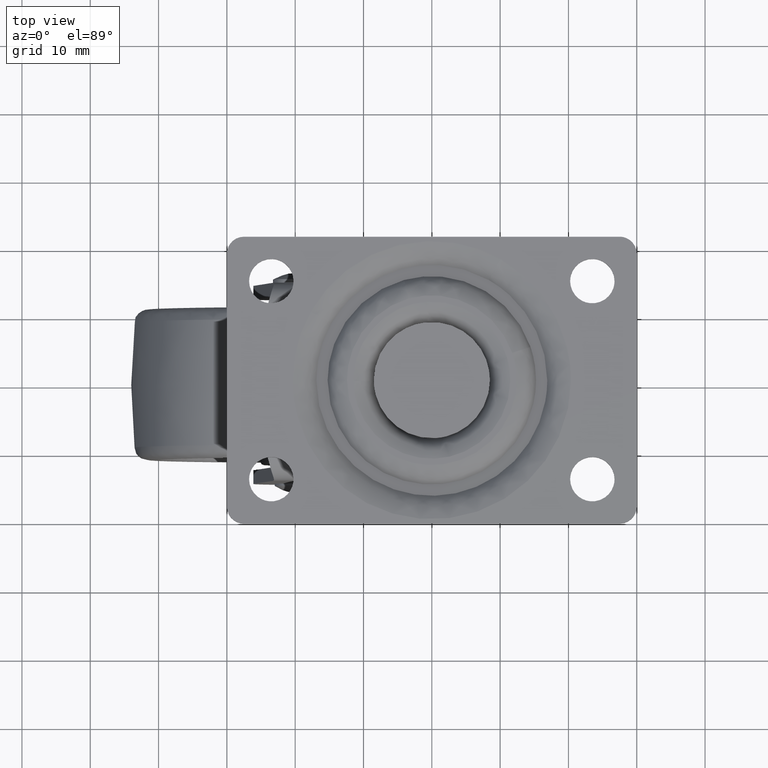
[diagram: clean part render]
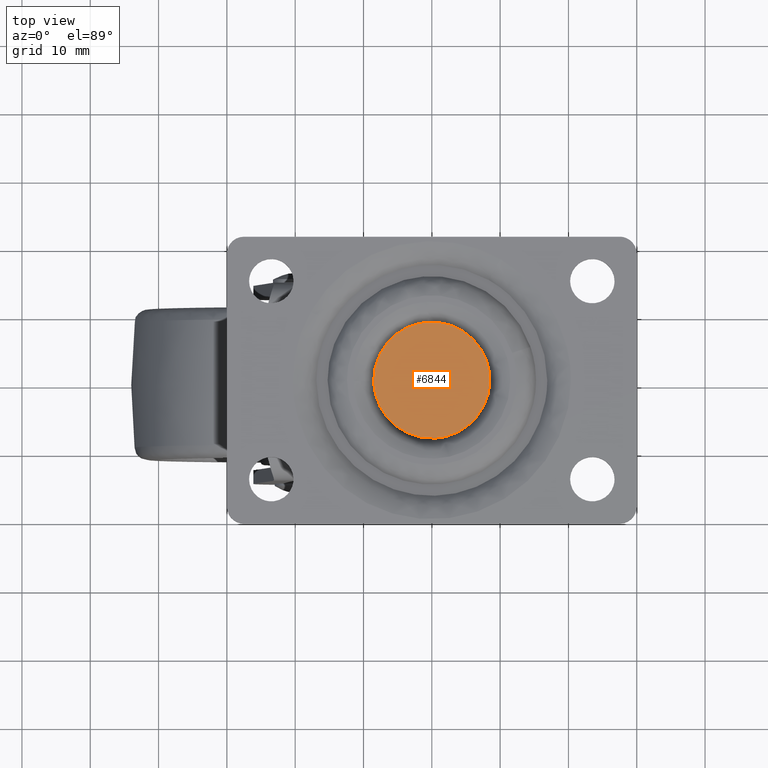
[diagram: same view with one face highlighted and labeled with its STEP entity id]
A machine part, top view. The second image highlights one B-rep face of the part: STEP entity #6844.
In plain terms, the highlighted face is a freeform B-spline surface patch.
Its self-contained STEP definition (entity closure, byte-faithful):
#5944=CARTESIAN_POINT('',(-1.003290168390213,8.440574023018852,3.549285E-016));
#5945=VERTEX_POINT('',#5944);
#5946=CARTESIAN_POINT('',(8.499993000000002,7.105427E-015,0.0));
#5947=VERTEX_POINT('',#5946);
#5948=CARTESIAN_POINT('',(-1.003290168390213,8.440574023018852,3.549285E-016));
#5949=CARTESIAN_POINT('',(-0.503404602520308,8.499993000000007,0.0));
#5950=CARTESIAN_POINT('',(0.0,8.499993000000007,0.0));
#5951=CARTESIAN_POINT('',(8.499993000000002,8.499993000000007,0.0));
#5952=CARTESIAN_POINT('',(8.499993000000002,7.105427E-015,0.0));
#5960=(BOUNDED_CURVE()B_SPLINE_CURVE(2,(#5948,#5949,#5950,#5951,#5952),.UNSPECIFIED.,.F.,.U.)B_SPLINE_CURVE_WITH_KNOTS((3,2,3),(0.229562473513746,0.250000000000000,0.500000000000000),.UNSPECIFIED.)CURVE()GEOMETRIC_REPRESENTATION_ITEM()RATIONAL_B_SPLINE_CURVE((0.956026754184165,0.976055948331423,1.0,0.707106781186547,1.0))REPRESENTATION_ITEM(''));
#5961=EDGE_CURVE('',#5945,#5947,#5960,.T.);
#5963=CARTESIAN_POINT('',(0.518912158783120,-8.484138799637588,3.330669E-016));
#5964=VERTEX_POINT('',#5963);
#5965=CARTESIAN_POINT('',(8.499993000000002,7.105427E-015,0.0));
#5966=CARTESIAN_POINT('',(8.499993000000002,-7.995994983611243,0.0));
#5967=CARTESIAN_POINT('',(0.518912158783120,-8.484138799637588,3.330669E-016));
#5975=(BOUNDED_CURVE()B_SPLINE_CURVE(2,(#5965,#5966,#5967),.UNSPECIFIED.,.F.,.U.)B_SPLINE_CURVE_WITH_KNOTS((3,3),(0.500000000000000,0.739332962238852),.UNSPECIFIED.)CURVE()GEOMETRIC_REPRESENTATION_ITEM()RATIONAL_B_SPLINE_CURVE((1.0,0.719603993286817,0.976072041666523))REPRESENTATION_ITEM(''));
#5976=EDGE_CURVE('',#5947,#5964,#5975,.T.);
#6043=CARTESIAN_POINT('',(-8.499993000000002,7.105427E-015,0.0));
#6044=VERTEX_POINT('',#6043);
#6045=CARTESIAN_POINT('',(-8.499993000000002,7.105427E-015,0.0));
#6046=CARTESIAN_POINT('',(-8.499993000000002,7.549477253279549,0.0));
#6047=CARTESIAN_POINT('',(-1.003290168390213,8.440574023018852,3.549285E-016));
#6055=(BOUNDED_CURVE()B_SPLINE_CURVE(2,(#6045,#6046,#6047),.UNSPECIFIED.,.F.,.U.)B_SPLINE_CURVE_WITH_KNOTS((3,3),(0.0,0.229562473513746),.UNSPECIFIED.)CURVE()GEOMETRIC_REPRESENTATION_ITEM()RATIONAL_B_SPLINE_CURVE((1.0,0.731050832855124,0.956026754184165))REPRESENTATION_ITEM(''));
#6056=EDGE_CURVE('',#6044,#5945,#6055,.T.);
#6090=CARTESIAN_POINT('',(0.518912158783120,-8.484138799637588,3.330669E-016));
#6091=CARTESIAN_POINT('',(0.259698274245491,-8.499992999999995,0.0));
#6092=CARTESIAN_POINT('',(0.0,-8.499992999999995,0.0));
#6093=CARTESIAN_POINT('',(-8.499993000000002,-8.499992999999995,0.0));
#6094=CARTESIAN_POINT('',(-8.499993000000002,7.105427E-015,0.0));
#6102=(BOUNDED_CURVE()B_SPLINE_CURVE(2,(#6090,#6091,#6092,#6093,#6094),.UNSPECIFIED.,.F.,.U.)B_SPLINE_CURVE_WITH_KNOTS((3,2,3),(0.739332962238852,0.750000000000000,1.0),.UNSPECIFIED.)CURVE()GEOMETRIC_REPRESENTATION_ITEM()RATIONAL_B_SPLINE_CURVE((0.976072041666523,0.987502787899731,1.0,0.707106781186547,1.0))REPRESENTATION_ITEM(''));
#6103=EDGE_CURVE('',#5964,#6044,#6102,.T.);
#6833=CARTESIAN_POINT('',(-9.349142586918140,-9.348935545059890,0.0));
#6834=CARTESIAN_POINT('',(9.349142738909860,-9.348935545059890,0.0));
#6835=CARTESIAN_POINT('',(-9.349142586918138,9.348987678219523,0.0));
#6836=CARTESIAN_POINT('',(9.349142738909860,9.348987678219523,0.0));
#6837=B_SPLINE_SURFACE_WITH_KNOTS('',1,1,((#6833,#6835),(#6834,#6836)),.UNSPECIFIED.,.F.,.F.,.U.,(2,2),(2,2),(0.0,18.698285325828000),(0.0,18.697923223279410),.UNSPECIFIED.);
#6838=ORIENTED_EDGE('',*,*,#6103,.F.);
#6839=ORIENTED_EDGE('',*,*,#5976,.F.);
#6840=ORIENTED_EDGE('',*,*,#5961,.F.);
#6841=ORIENTED_EDGE('',*,*,#6056,.F.);
#6842=EDGE_LOOP('',(#6838,#6839,#6840,#6841));
#6843=FACE_OUTER_BOUND('',#6842,.T.);
#6844=ADVANCED_FACE('',(#6843),#6837,.T.);